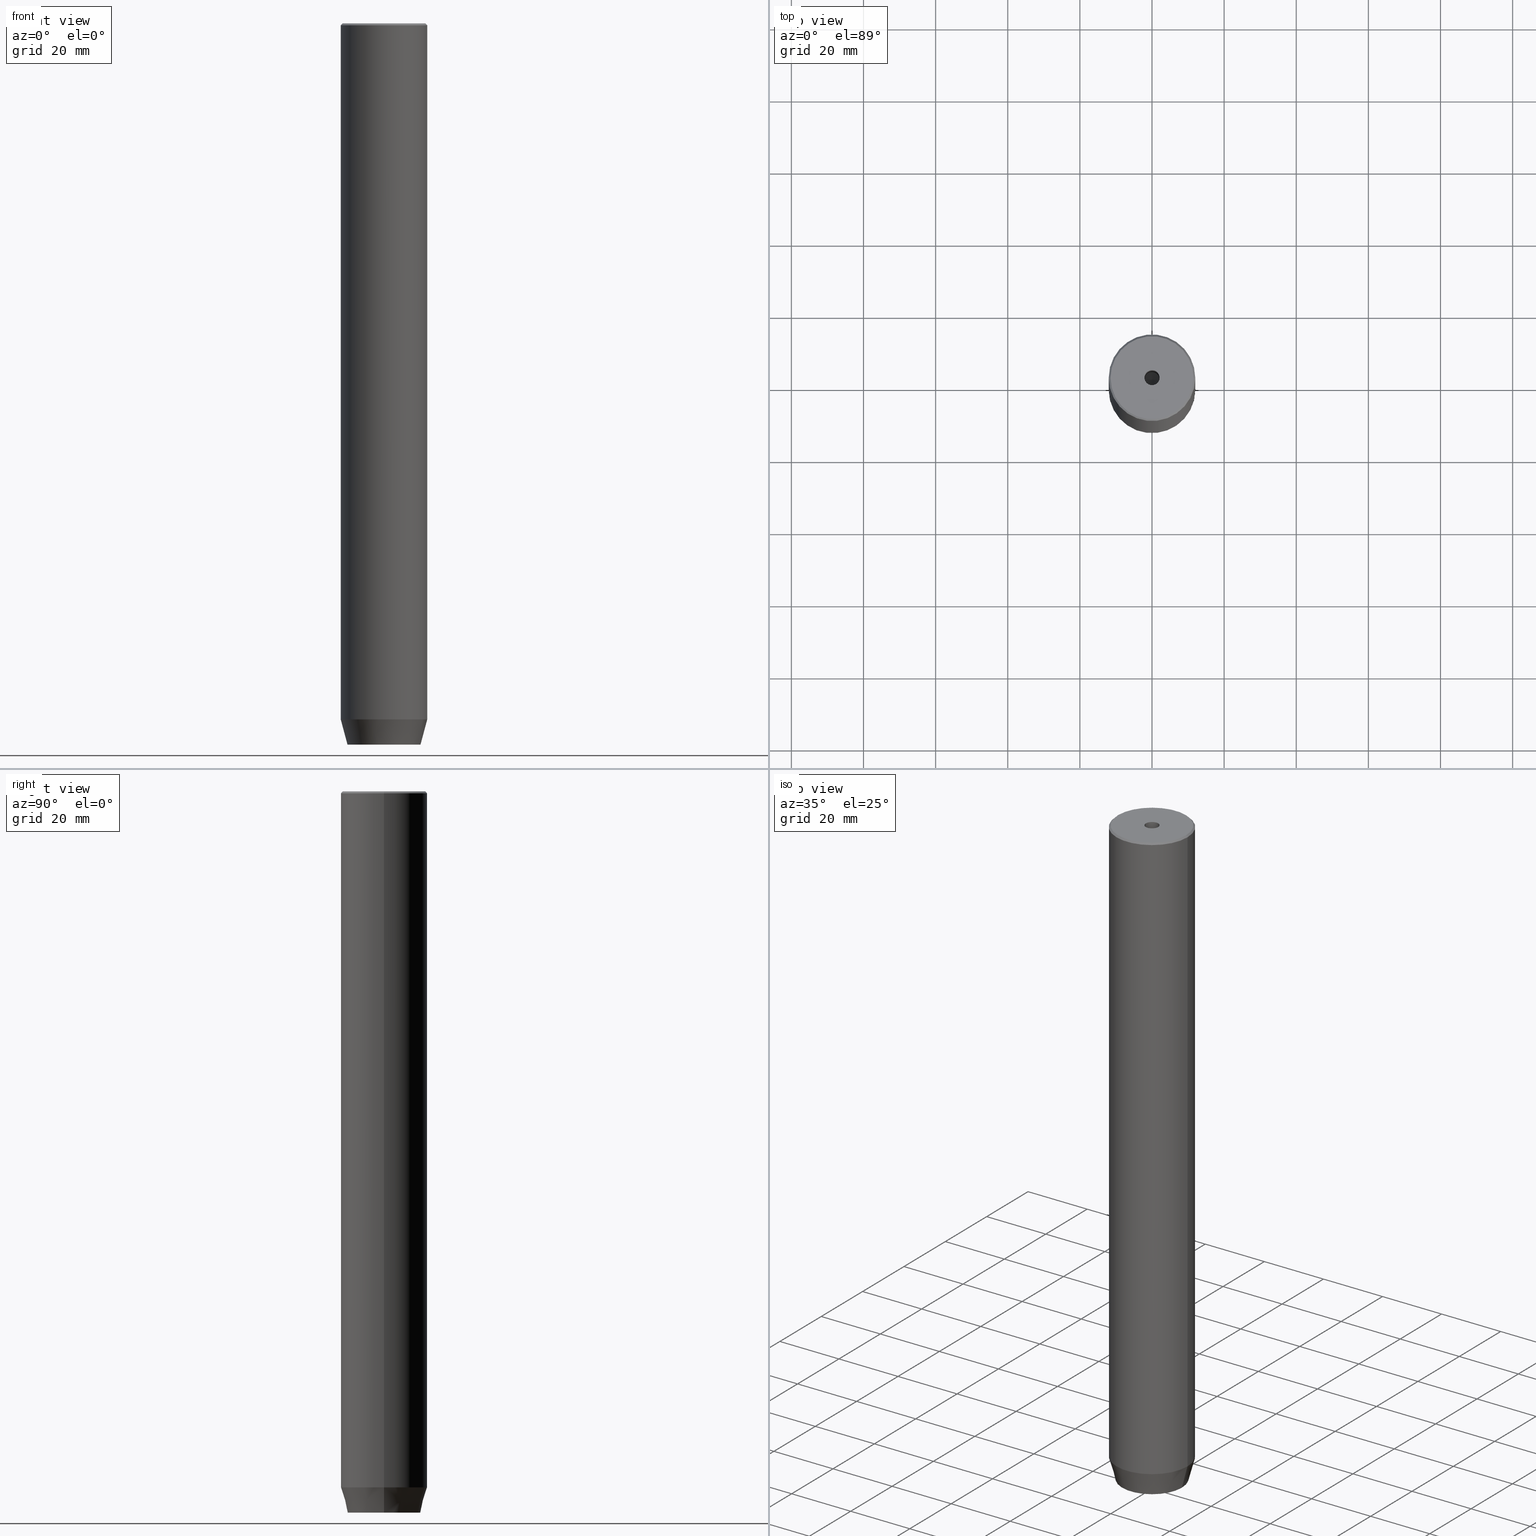
[diagram: canonical four-view strip — front | top / right | iso, engineering-drawing reading convention]
A machine part, canonical four-view strip (front | top / right | iso — engineering-drawing reading convention). The complete STEP part file that produces these views, byte-faithful:
ISO-10303-21;
HEADER;
FILE_DESCRIPTION (( 'STEP AP203' ),
    '1' );
FILE_NAME ('794c.STEP',
    '2024-01-02T17:14:36',
    ( '' ),
    ( '' ),
    'SwSTEP 2.0',
    'SolidWorks 2019',
    '' );
FILE_SCHEMA (( 'CONFIG_CONTROL_DESIGN' ));
ENDSEC;

DATA;
#1 = ORIENTED_EDGE ( 'NONE', *, *, #272, .F. ) ;
#2 = FACE_OUTER_BOUND ( 'NONE', #132, .T. ) ;
#3 = CARTESIAN_POINT ( 'NONE',  ( 2.000000000000000444, 3.464101615137754386, -200.0000000000000000 ) ) ;
#4 = VECTOR ( 'NONE', #447, 1000.000000000000000 ) ;
#5 = CC_DESIGN_SECURITY_CLASSIFICATION ( #185, ( #570 ) ) ;
#6 = ORIENTED_EDGE ( 'NONE', *, *, #237, .F. ) ;
#7 = ORIENTED_EDGE ( 'NONE', *, *, #585, .T. ) ;
#8 = ORIENTED_EDGE ( 'NONE', *, *, #409, .T. ) ;
#9 = PRODUCT_RELATED_PRODUCT_CATEGORY ( 'detail', '', ( #82 ) ) ;
#10 = DIRECTION ( 'NONE',  ( -0.000000000000000000, -0.000000000000000000, -1.000000000000000000 ) ) ;
#11 = AXIS2_PLACEMENT_3D ( 'NONE', #207, #461, #15 ) ;
#12 = CARTESIAN_POINT ( 'NONE',  ( 0.000000000000000000, 0.000000000000000000, -200.0000000000000000 ) ) ;
#13 = ADVANCED_FACE ( 'NONE', ( #481 ), #29, .T. ) ;
#14 = CARTESIAN_POINT ( 'NONE',  ( -4.000000000000000000, 0.000000000000000000, -197.2000000000000171 ) ) ;
#15 = DIRECTION ( 'NONE',  ( 1.000000000000000000, 0.000000000000000000, 0.000000000000000000 ) ) ;
#16 = ORIENTED_EDGE ( 'NONE', *, *, #46, .F. ) ;
#17 = LINE ( 'NONE', #73, #371 ) ;
#18 = EDGE_LOOP ( 'NONE', ( #438, #253, #415, #27 ) ) ;
#19 = CARTESIAN_POINT ( 'NONE',  ( -2.099999999999996980, 2.571758278209438013E-16, 0.000000000000000000 ) ) ;
#20 = VECTOR ( 'NONE', #191, 1000.000000000000000 ) ;
#21 = SHAPE_DEFINITION_REPRESENTATION ( #76, #225 ) ;
#22 = PLANE ( 'NONE',  #449 ) ;
#23 = DATE_AND_TIME ( #126, #252 ) ;
#24 = EDGE_CURVE ( 'NONE', #86, #212, #187, .T. ) ;
#25 = CARTESIAN_POINT ( 'NONE',  ( 0.000000000000000000, 0.000000000000000000, -0.5000000000000334177 ) ) ;
#26 = PERSON_AND_ORGANIZATION ( #375, #281 ) ;
#27 = ORIENTED_EDGE ( 'NONE', *, *, #40, .T. ) ;
#28 = EDGE_LOOP ( 'NONE', ( #511, #121 ) ) ;
#29 = CONICAL_SURFACE ( 'NONE', #513, 11.49999999999998046, 0.7853981633974344012 ) ;
#30 = APPROVAL_DATE_TIME ( #574, #56 ) ;
#31 = AXIS2_PLACEMENT_3D ( 'NONE', #584, #196, #189 ) ;
#32 = APPROVAL_PERSON_ORGANIZATION ( #342, #56, #340 ) ;
#33 = ADVANCED_FACE ( 'NONE', ( #397 ), #480, .T. ) ;
#34 = ORIENTED_EDGE ( 'NONE', *, *, #169, .T. ) ;
#35 = ORIENTED_EDGE ( 'NONE', *, *, #557, .T. ) ;
#36 = CARTESIAN_POINT ( 'NONE',  ( -2.099999999999998757, 2.571758278209440478E-16, -1.990051048614449116E-16 ) ) ;
#37 = DIRECTION ( 'NONE',  ( -0.000000000000000000, -0.000000000000000000, 1.000000000000000000 ) ) ;
#38 = ORIENTED_EDGE ( 'NONE', *, *, #24, .T. ) ;
#39 = ORIENTED_EDGE ( 'NONE', *, *, #291, .F. ) ;
#40 = EDGE_CURVE ( 'NONE', #155, #386, #177, .T. ) ;
#41 = DIRECTION ( 'NONE',  ( 1.000000000000000000, 0.000000000000000000, 0.000000000000000000 ) ) ;
#42 = FACE_OUTER_BOUND ( 'NONE', #28, .T. ) ;
#43 = VECTOR ( 'NONE', #361, 1000.000000000000000 ) ;
#44 = ORIENTED_EDGE ( 'NONE', *, *, #237, .T. ) ;
#45 = CARTESIAN_POINT ( 'NONE',  ( 11.49999999999998046, 1.438959988998138780E-15, 0.000000000000000000 ) ) ;
#46 = EDGE_CURVE ( 'NONE', #167, #441, #77, .T. ) ;
#47 = DIRECTION ( 'NONE',  ( 1.000000000000000000, 0.000000000000000000, 0.000000000000000000 ) ) ;
#48 = PLANE ( 'NONE',  #299 ) ;
#49 = DIRECTION ( 'NONE',  ( -0.8660254037844384856, 0.5000000000000002220, 0.000000000000000000 ) ) ;
#50 = ORIENTED_EDGE ( 'NONE', *, *, #123, .F. ) ;
#51 = DIRECTION ( 'NONE',  ( -0.000000000000000000, -0.000000000000000000, 1.000000000000000000 ) ) ;
#52 = VERTEX_POINT ( 'NONE', #127 ) ;
#53 = AXIS2_PLACEMENT_3D ( 'NONE', #12, #62, #255 ) ;
#54 =( LENGTH_UNIT ( ) NAMED_UNIT ( * ) SI_UNIT ( .MILLI., .METRE. ) );
#55 = ORIENTED_EDGE ( 'NONE', *, *, #334, .F. ) ;
#56 = APPROVAL ( #429, 'NEUR�EN�' ) ;
#57 = VERTEX_POINT ( 'NONE', #442 ) ;
#58 = EDGE_CURVE ( 'NONE', #52, #149, #160, .T. ) ;
#59 = AXIS2_PLACEMENT_3D ( 'NONE', #567, #383, #164 ) ;
#60 = ORIENTED_EDGE ( 'NONE', *, *, #123, .T. ) ;
#61 = LOCAL_TIME ( 18, 14, 36.00000000000000000, #518 ) ;
#62 = DIRECTION ( 'NONE',  ( -0.000000000000000000, -0.000000000000000000, 1.000000000000000000 ) ) ;
#63 = CC_DESIGN_DATE_AND_TIME_ASSIGNMENT ( #479, #439, ( #193 ) ) ;
#64 = EDGE_CURVE ( 'NONE', #231, #373, #311, .T. ) ;
#65 = ORIENTED_EDGE ( 'NONE', *, *, #557, .F. ) ;
#66 = DIRECTION ( 'NONE',  ( 0.000000000000000000, 0.000000000000000000, -1.000000000000000000 ) ) ;
#67 = CARTESIAN_POINT ( 'NONE',  ( -2.099999999999994760, 2.571758278209435054E-16, -30.00000000000000000 ) ) ;
#68 = PERSON_AND_ORGANIZATION ( #375, #281 ) ;
#69 = EDGE_CURVE ( 'NONE', #86, #122, #211, .T. ) ;
#70 = CARTESIAN_POINT ( 'NONE',  ( 0.000000000000000000, 0.000000000000000000, 0.000000000000000000 ) ) ;
#71 = CIRCLE ( 'NONE', #330, 12.00000000000000000 ) ;
#72 = ORIENTED_EDGE ( 'NONE', *, *, #219, .T. ) ;
#73 = CARTESIAN_POINT ( 'NONE',  ( -4.000000000000000000, 2.309401076758503368, -197.2000000000000171 ) ) ;
#74 = SECURITY_CLASSIFICATION_LEVEL ( 'unclassified' ) ;
#75 = ORIENTED_EDGE ( 'NONE', *, *, #566, .T. ) ;
#76 = PRODUCT_DEFINITION_SHAPE ( 'NONE', 'NONE',  #193 ) ;
#77 = LINE ( 'NONE', #175, #410 ) ;
#78 = APPROVAL_ROLE ( '' ) ;
#79 = ORIENTED_EDGE ( 'NONE', *, *, #280, .F. ) ;
#80 = VECTOR ( 'NONE', #181, 1000.000000000000000 ) ;
#81 = EDGE_CURVE ( 'NONE', #571, #509, #71, .T. ) ;
#82 = PRODUCT ( '794c', '794c', '', ( #467 ) ) ;
#83 = CARTESIAN_POINT ( 'NONE',  ( 0.000000000000000000, 0.000000000000000000, 0.000000000000000000 ) ) ;
#84 = CARTESIAN_POINT ( 'NONE',  ( -2.099999999999994760, 2.571758278209435054E-16, -30.00000000000000000 ) ) ;
#85 = CARTESIAN_POINT ( 'NONE',  ( -11.49999999999998046, 0.000000000000000000, 0.000000000000000000 ) ) ;
#86 = VERTEX_POINT ( 'NONE', #572 ) ;
#87 = DIRECTION ( 'NONE',  ( -0.8660254037844384856, -0.5000000000000002220, 0.000000000000000000 ) ) ;
#88 = CARTESIAN_POINT ( 'NONE',  ( -4.000000000000000000, 0.000000000000000000, -200.0000000000000000 ) ) ;
#89 = CARTESIAN_POINT ( 'NONE',  ( -2.000000000000000888, -3.464101615137754386, -200.0000000000000000 ) ) ;
#90 = ORIENTED_EDGE ( 'NONE', *, *, #356, .T. ) ;
#91 = CARTESIAN_POINT ( 'NONE',  ( 2.099999999999994760, 0.000000000000000000, -30.00000000000000000 ) ) ;
#92 = VECTOR ( 'NONE', #315, 1000.000000000000000 ) ;
#93 = CARTESIAN_POINT ( 'NONE',  ( 0.000000000000000000, 10.12435565298213547, -200.0000000000000000 ) ) ;
#94 = AXIS2_PLACEMENT_3D ( 'NONE', #301, #420, #329 ) ;
#95 = LINE ( 'NONE', #91, #203 ) ;
#96 = CARTESIAN_POINT ( 'NONE',  ( 0.000000000000000000, 0.000000000000000000, -30.00000000000000000 ) ) ;
#97 = DIRECTION ( 'NONE',  ( 1.000000000000000000, 0.000000000000000000, 0.000000000000000000 ) ) ;
#98 = ADVANCED_FACE ( 'NONE', ( #385 ), #22, .F. ) ;
#99 = ORIENTED_EDGE ( 'NONE', *, *, #334, .T. ) ;
#100 = APPLICATION_CONTEXT ( 'configuration controlled 3d designs of mechanical parts and assemblies' ) ;
#101 = DIRECTION ( 'NONE',  ( 0.000000000000000000, -1.000000000000000000, 0.000000000000000000 ) ) ;
#102 = ORIENTED_EDGE ( 'NONE', *, *, #585, .F. ) ;
#103 = CC_DESIGN_PERSON_AND_ORGANIZATION_ASSIGNMENT ( #26, #268, ( #185 ) ) ;
#104 = CIRCLE ( 'NONE', #476, 12.00000000000000000 ) ;
#105 = ORIENTED_EDGE ( 'NONE', *, *, #507, .T. ) ;
#106 = ORIENTED_EDGE ( 'NONE', *, *, #64, .T. ) ;
#107 = CARTESIAN_POINT ( 'NONE',  ( 4.000000000000000000, 0.000000000000000000, -197.2000000000000171 ) ) ;
#108 = FACE_OUTER_BOUND ( 'NONE', #264, .T. ) ;
#109 = ORIENTED_EDGE ( 'NONE', *, *, #272, .T. ) ;
#110 = APPROVAL_PERSON_ORGANIZATION ( #333, #562, #464 ) ;
#111 = ORIENTED_EDGE ( 'NONE', *, *, #280, .T. ) ;
#112 = DIRECTION ( 'NONE',  ( -0.000000000000000000, -0.000000000000000000, 1.000000000000000000 ) ) ;
#113 = LINE ( 'NONE', #469, #271 ) ;
#114 = ORIENTED_EDGE ( 'NONE', *, *, #520, .F. ) ;
#115 = CARTESIAN_POINT ( 'NONE',  ( 0.000000000000000000, 0.000000000000000000, -30.00000000000000000 ) ) ;
#116 = COORDINATED_UNIVERSAL_TIME_OFFSET ( 1, 0, .AHEAD. ) ;
#117 = DIRECTION ( 'NONE',  ( 0.5000000000000003331, -0.8660254037844385966, 0.000000000000000000 ) ) ;
#118 = APPROVAL_DATE_TIME ( #218, #562 ) ;
#119 = DIRECTION ( 'NONE',  ( -0.000000000000000000, -0.000000000000000000, 1.000000000000000000 ) ) ;
#120 = AXIS2_PLACEMENT_3D ( 'NONE', #543, #552, #581 ) ;
#121 = ORIENTED_EDGE ( 'NONE', *, *, #135, .F. ) ;
#122 = VERTEX_POINT ( 'NONE', #67 ) ;
#123 = EDGE_CURVE ( 'NONE', #509, #571, #104, .T. ) ;
#124 = PERSON_AND_ORGANIZATION ( #375, #281 ) ;
#125 = ORIENTED_EDGE ( 'NONE', *, *, #58, .F. ) ;
#126 = CALENDAR_DATE ( 2024, 2, 1 ) ;
#127 = CARTESIAN_POINT ( 'NONE',  ( 12.00000000000000000, 0.000000000000000000, -193.0000000000000000 ) ) ;
#128 = VECTOR ( 'NONE', #49, 1000.000000000000114 ) ;
#129 = DIRECTION ( 'NONE',  ( 0.000000000000000000, 0.000000000000000000, -1.000000000000000000 ) ) ;
#130 = APPROVAL_PERSON_ORGANIZATION ( #68, #501, #78 ) ;
#131 = LINE ( 'NONE', #318, #92 ) ;
#132 = EDGE_LOOP ( 'NONE', ( #146, #162, #8 ) ) ;
#133 = FACE_OUTER_BOUND ( 'NONE', #378, .T. ) ;
#134 = FACE_OUTER_BOUND ( 'NONE', #200, .T. ) ;
#135 = EDGE_CURVE ( 'NONE', #156, #416, #141, .T. ) ;
#136 = ORIENTED_EDGE ( 'NONE', *, *, #402, .F. ) ;
#137 = ORIENTED_EDGE ( 'NONE', *, *, #488, .T. ) ;
#138 = CARTESIAN_POINT ( 'NONE',  ( 4.336808689942017736E-16, -4.618802153517006737, -200.0000000000000000 ) ) ;
#139 = DIRECTION ( 'NONE',  ( -0.000000000000000000, -0.000000000000000000, 1.000000000000000000 ) ) ;
#140 = DIRECTION ( 'NONE',  ( -0.8660254037844384856, -0.5000000000000002220, 0.000000000000000000 ) ) ;
#141 = CIRCLE ( 'NONE', #59, 10.12435565298213547 ) ;
#142 = DIRECTION ( 'NONE',  ( -0.8660254037844385966, 0.5000000000000001110, 0.000000000000000000 ) ) ;
#143 = VECTOR ( 'NONE', #157, 999.9999999999998863 ) ;
#144 = VERTEX_POINT ( 'NONE', #304 ) ;
#145 = CC_DESIGN_PERSON_AND_ORGANIZATION_ASSIGNMENT ( #526, #384, ( #193 ) ) ;
#146 = ORIENTED_EDGE ( 'NONE', *, *, #391, .F. ) ;
#147 = LINE ( 'NONE', #317, #4 ) ;
#148 = FACE_BOUND ( 'NONE', #267, .T. ) ;
#149 = VERTEX_POINT ( 'NONE', #425 ) ;
#150 = DIRECTION ( 'NONE',  ( -0.000000000000000000, -0.000000000000000000, 1.000000000000000000 ) ) ;
#151 = EDGE_LOOP ( 'NONE', ( #463, #414, #38, #35 ) ) ;
#152 = APPLICATION_PROTOCOL_DEFINITION ( 'international standard', 'config_control_design', 1994, #100 ) ;
#153 = ADVANCED_FACE ( 'NONE', ( #433 ), #344, .T. ) ;
#154 = VECTOR ( 'NONE', #564, 1000.000000000000000 ) ;
#155 = VERTEX_POINT ( 'NONE', #339 ) ;
#156 = VERTEX_POINT ( 'NONE', #265 ) ;
#157 = DIRECTION ( 'NONE',  ( -0.7071067811865376918, 0.000000000000000000, -0.7071067811865574537 ) ) ;
#158 = EDGE_LOOP ( 'NONE', ( #273, #90, #60, #270 ) ) ;
#159 = CARTESIAN_POINT ( 'NONE',  ( 12.00000000000000000, 0.000000000000000000, 0.000000000000000000 ) ) ;
#160 = CIRCLE ( 'NONE', #241, 12.00000000000000000 ) ;
#161 = AXIS2_PLACEMENT_3D ( 'NONE', #215, #306, #478 ) ;
#162 = ORIENTED_EDGE ( 'NONE', *, *, #402, .T. ) ;
#163 = AXIS2_PLACEMENT_3D ( 'NONE', #250, #367, #205 ) ;
#164 = DIRECTION ( 'NONE',  ( 1.000000000000000000, 0.000000000000000000, 0.000000000000000000 ) ) ;
#165 = CARTESIAN_POINT ( 'NONE',  ( 2.000000000000000888, -3.464101615137754386, -197.2000000000000171 ) ) ;
#166 = ADVANCED_FACE ( 'NONE', ( #573 ), #343, .F. ) ;
#167 = VERTEX_POINT ( 'NONE', #168 ) ;
#168 = CARTESIAN_POINT ( 'NONE',  ( 4.000000000000000000, -2.309401076758502480, -197.2000000000000171 ) ) ;
#169 = EDGE_CURVE ( 'NONE', #167, #500, #259, .T. ) ;
#170 = VECTOR ( 'NONE', #551, 999.9999999999998863 ) ;
#171 = EDGE_LOOP ( 'NONE', ( #223, #6, #1, #489 ) ) ;
#172 = CONICAL_SURFACE ( 'NONE', #94, 12.00000000000000000, 0.2617993877991500740 ) ;
#173 = PERSON_AND_ORGANIZATION_ROLE ( 'creator' ) ;
#174 = EDGE_CURVE ( 'NONE', #122, #465, #521, .T. ) ;
#175 = CARTESIAN_POINT ( 'NONE',  ( 2.000000000000000888, -3.464101615137754386, -197.2000000000000171 ) ) ;
#176 = CALENDAR_DATE ( 2024, 2, 1 ) ;
#177 = LINE ( 'NONE', #529, #80 ) ;
#178 = LINE ( 'NONE', #413, #170 ) ;
#179 = DIRECTION ( 'NONE',  ( 0.2588190451025213501, 0.000000000000000000, 0.9659258262890680902 ) ) ;
#180 = ORIENTED_EDGE ( 'NONE', *, *, #550, .F. ) ;
#181 = DIRECTION ( 'NONE',  ( -0.000000000000000000, -0.000000000000000000, -1.000000000000000000 ) ) ;
#182 = CONICAL_SURFACE ( 'NONE', #411, 2.099999999999994760, 1.029744258676652535 ) ;
#183 = ADVANCED_FACE ( 'NONE', ( #517 ), #302, .F. ) ;
#184 = CARTESIAN_POINT ( 'NONE',  ( -2.000000000000000888, -3.464101615137754386, -197.2000000000000171 ) ) ;
#185 = SECURITY_CLASSIFICATION ( '', '', #74 ) ;
#186 = CARTESIAN_POINT ( 'NONE',  ( -4.000000000000000000, -2.309401076758503368, -197.2000000000000171 ) ) ;
#187 = LINE ( 'NONE', #226, #194 ) ;
#188 = DIRECTION ( 'NONE',  ( -0.000000000000000000, -0.000000000000000000, 1.000000000000000000 ) ) ;
#189 = DIRECTION ( 'NONE',  ( 0.000000000000000000, 0.000000000000000000, 1.000000000000000000 ) ) ;
#190 = DESIGN_CONTEXT ( 'detailed design', #544, 'design' ) ;
#191 = DIRECTION ( 'NONE',  ( -0.000000000000000000, -0.000000000000000000, -1.000000000000000000 ) ) ;
#192 = LINE ( 'NONE', #444, #288 ) ;
#193 = PRODUCT_DEFINITION ( 'NEZN�M�', '', #570, #190 ) ;
#194 = VECTOR ( 'NONE', #536, 1000.000000000000000 ) ;
#195 = CARTESIAN_POINT ( 'NONE',  ( 4.000000000000000000, -2.309401076758502480, -200.0000000000000000 ) ) ;
#196 = DIRECTION ( 'NONE',  ( -1.000000000000000000, 0.000000000000000000, 0.000000000000000000 ) ) ;
#197 = LINE ( 'NONE', #107, #290 ) ;
#198 = VERTEX_POINT ( 'NONE', #435 ) ;
#199 = DIRECTION ( 'NONE',  ( 0.000000000000000000, 0.000000000000000000, 1.000000000000000000 ) ) ;
#200 = EDGE_LOOP ( 'NONE', ( #137, #504, #221, #44 ) ) ;
#201 = VERTEX_POINT ( 'NONE', #468 ) ;
#202 = DIRECTION ( 'NONE',  ( 1.000000000000000000, 0.000000000000000000, 0.000000000000000000 ) ) ;
#203 = VECTOR ( 'NONE', #286, 1000.000000000000000 ) ;
#204 = VECTOR ( 'NONE', #179, 1000.000000000000000 ) ;
#205 = DIRECTION ( 'NONE',  ( 1.000000000000000000, 0.000000000000000000, 0.000000000000000000 ) ) ;
#206 = DIRECTION ( 'NONE',  ( 0.000000000000000000, 1.000000000000000000, 0.000000000000000000 ) ) ;
#207 = CARTESIAN_POINT ( 'NONE',  ( 0.000000000000000000, 0.000000000000000000, -1.990051048614449116E-16 ) ) ;
#208 = ORIENTED_EDGE ( 'NONE', *, *, #332, .T. ) ;
#209 = EDGE_CURVE ( 'NONE', #201, #57, #17, .T. ) ;
#210 = CARTESIAN_POINT ( 'NONE',  ( 4.000000000000000000, -2.309401076758502480, -197.2000000000000171 ) ) ;
#211 = CIRCLE ( 'NONE', #390, 2.099999999999994760 ) ;
#212 = VERTEX_POINT ( 'NONE', #514 ) ;
#213 = CC_DESIGN_APPROVAL ( #56, ( #185 ) ) ;
#214 = CC_DESIGN_PERSON_AND_ORGANIZATION_ASSIGNMENT ( #124, #303, ( #570 ) ) ;
#215 = CARTESIAN_POINT ( 'NONE',  ( 4.000000000000000000, 0.000000000000000000, -197.2000000000000171 ) ) ;
#216 = ORIENTED_EDGE ( 'NONE', *, *, #64, .F. ) ;
#217 = DIRECTION ( 'NONE',  ( -1.000000000000000000, 0.000000000000000000, 0.000000000000000000 ) ) ;
#218 = DATE_AND_TIME ( #394, #61 ) ;
#219 = EDGE_CURVE ( 'NONE', #365, #201, #423, .T. ) ;
#220 = DIRECTION ( 'NONE',  ( -0.5000000000000000000, 0.8660254037844387076, 0.000000000000000000 ) ) ;
#221 = ORIENTED_EDGE ( 'NONE', *, *, #219, .F. ) ;
#222 = VECTOR ( 'NONE', #119, 1000.000000000000000 ) ;
#223 = ORIENTED_EDGE ( 'NONE', *, *, #256, .T. ) ;
#224 = VECTOR ( 'NONE', #249, 999.9999999999998863 ) ;
#225 = ADVANCED_BREP_SHAPE_REPRESENTATION ( '794c', ( #474, #534 ), #497 ) ;
#226 = CARTESIAN_POINT ( 'NONE',  ( 2.099999999999996980, 0.000000000000000000, 0.000000000000000000 ) ) ;
#227 = CARTESIAN_POINT ( 'NONE',  ( 0.000000000000000000, 0.000000000000000000, 0.000000000000000000 ) ) ;
#228 = EDGE_CURVE ( 'NONE', #52, #571, #377, .T. ) ;
#229 = CYLINDRICAL_SURFACE ( 'NONE', #312, 12.00000000000000000 ) ;
#230 = FACE_OUTER_BOUND ( 'NONE', #171, .T. ) ;
#231 = VERTEX_POINT ( 'NONE', #85 ) ;
#232 = VECTOR ( 'NONE', #206, 1000.000000000000000 ) ;
#233 = LINE ( 'NONE', #88, #483 ) ;
#234 = DIRECTION ( 'NONE',  ( 0.000000000000000000, 0.000000000000000000, -1.000000000000000000 ) ) ;
#235 = CARTESIAN_POINT ( 'NONE',  ( 10.12435565298213547, 0.000000000000000000, -200.0000000000000000 ) ) ;
#236 = LINE ( 'NONE', #406, #204 ) ;
#237 = EDGE_CURVE ( 'NONE', #365, #198, #351, .T. ) ;
#238 = FACE_OUTER_BOUND ( 'NONE', #151, .T. ) ;
#239 = DIRECTION ( 'NONE',  ( 0.8660254037844387076, 0.5000000000000001110, 0.000000000000000000 ) ) ;
#240 = CC_DESIGN_PERSON_AND_ORGANIZATION_ASSIGNMENT ( #426, #173, ( #570 ) ) ;
#241 = AXIS2_PLACEMENT_3D ( 'NONE', #347, #313, #485 ) ;
#242 = LINE ( 'NONE', #405, #20 ) ;
#243 = CIRCLE ( 'NONE', #53, 10.12435565298213547 ) ;
#244 = ORIENTED_EDGE ( 'NONE', *, *, #310, .T. ) ;
#245 = CC_DESIGN_APPROVAL ( #501, ( #570 ) ) ;
#246 = ORIENTED_EDGE ( 'NONE', *, *, #409, .F. ) ;
#247 = EDGE_LOOP ( 'NONE', ( #102, #216, #75, #503 ) ) ;
#248 = ADVANCED_FACE ( 'NONE', ( #134 ), #399, .F. ) ;
#249 = DIRECTION ( 'NONE',  ( 0.7071067811865376918, 8.659560562354813296E-17, -0.7071067811865574537 ) ) ;
#250 = CARTESIAN_POINT ( 'NONE',  ( 0.000000000000000000, 0.000000000000000000, -193.0000000000000000 ) ) ;
#251 = VECTOR ( 'NONE', #532, 1000.000000000000000 ) ;
#252 = LOCAL_TIME ( 18, 14, 36.00000000000000000, #116 ) ;
#253 = ORIENTED_EDGE ( 'NONE', *, *, #169, .F. ) ;
#254 = DIRECTION ( 'NONE',  ( -0.000000000000000000, -0.000000000000000000, -1.000000000000000000 ) ) ;
#255 = DIRECTION ( 'NONE',  ( 1.000000000000000000, 0.000000000000000000, 0.000000000000000000 ) ) ;
#256 = EDGE_CURVE ( 'NONE', #490, #198, #324, .T. ) ;
#257 = DIRECTION ( 'NONE',  ( -0.000000000000000000, -0.000000000000000000, 1.000000000000000000 ) ) ;
#258 =( NAMED_UNIT ( * ) PLANE_ANGLE_UNIT ( ) SI_UNIT ( $, .RADIAN. ) );
#259 = LINE ( 'NONE', #210, #154 ) ;
#260 = AXIS2_PLACEMENT_3D ( 'NONE', #561, #150, #202 ) ;
#261 = ORIENTED_EDGE ( 'NONE', *, *, #310, .F. ) ;
#262 = ADVANCED_FACE ( 'NONE', ( #454 ), #547, .F. ) ;
#263 = DIRECTION ( 'NONE',  ( 0.000000000000000000, 0.000000000000000000, -1.000000000000000000 ) ) ;
#264 = EDGE_LOOP ( 'NONE', ( #412, #349, #99, #39 ) ) ;
#265 = CARTESIAN_POINT ( 'NONE',  ( -10.12435565298213547, 1.354726066681111050E-15, -200.0000000000000000 ) ) ;
#266 = APPROVAL_DATE_TIME ( #23, #501 ) ;
#267 = EDGE_LOOP ( 'NONE', ( #434, #276, #387, #527, #180, #368 ) ) ;
#268 = PERSON_AND_ORGANIZATION_ROLE ( 'classification_officer' ) ;
#269 = VECTOR ( 'NONE', #112, 1000.000000000000000 ) ;
#270 = ORIENTED_EDGE ( 'NONE', *, *, #228, .F. ) ;
#271 = VECTOR ( 'NONE', #10, 1000.000000000000000 ) ;
#272 = EDGE_CURVE ( 'NONE', #441, #365, #587, .T. ) ;
#273 = ORIENTED_EDGE ( 'NONE', *, *, #58, .T. ) ;
#274 = CYLINDRICAL_SURFACE ( 'NONE', #568, 2.099999999999996980 ) ;
#275 = CARTESIAN_POINT ( 'NONE',  ( 2.000000000000000444, 3.464101615137754386, -197.2000000000000171 ) ) ;
#276 = ORIENTED_EDGE ( 'NONE', *, *, #488, .F. ) ;
#277 = DIRECTION ( 'NONE',  ( 0.8660254037844384856, -0.5000000000000002220, 0.000000000000000000 ) ) ;
#278 = CARTESIAN_POINT ( 'NONE',  ( -2.000000000000000000, 3.464101615137754830, -197.2000000000000171 ) ) ;
#279 = AXIS2_PLACEMENT_3D ( 'NONE', #320, #51, #97 ) ;
#280 = EDGE_CURVE ( 'NONE', #373, #231, #558, .T. ) ;
#281 = ORGANIZATION ( 'NEUR�EN�', 'NEUR�EN�', '' ) ;
#282 = FACE_OUTER_BOUND ( 'NONE', #556, .T. ) ;
#283 = DIRECTION ( 'NONE',  ( -1.000000000000000000, 0.000000000000000000, -0.000000000000000000 ) ) ;
#284 = FACE_OUTER_BOUND ( 'NONE', #295, .T. ) ;
#285 = CARTESIAN_POINT ( 'NONE',  ( -4.000000000000000000, -2.309401076758503368, -197.2000000000000171 ) ) ;
#286 = DIRECTION ( 'NONE',  ( 0.8571673007021113344, 0.000000000000000000, 0.5150380749100558209 ) ) ;
#287 = CARTESIAN_POINT ( 'NONE',  ( 12.00000000000000000, 0.000000000000000000, -0.5000000000000334177 ) ) ;
#288 = VECTOR ( 'NONE', #37, 1000.000000000000000 ) ;
#289 = EDGE_LOOP ( 'NONE', ( #136, #376, #353 ) ) ;
#290 = VECTOR ( 'NONE', #506, 1000.000000000000000 ) ;
#291 = EDGE_CURVE ( 'NONE', #149, #52, #322, .T. ) ;
#292 = ORIENTED_EDGE ( 'NONE', *, *, #174, .T. ) ;
#293 = PERSON_AND_ORGANIZATION ( #375, #281 ) ;
#294 = ORIENTED_EDGE ( 'NONE', *, *, #372, .T. ) ;
#295 = EDGE_LOOP ( 'NONE', ( #246, #292, #393, #346 ) ) ;
#296 = PERSON_AND_ORGANIZATION_ROLE ( 'design_owner' ) ;
#297 = DIRECTION ( 'NONE',  ( 1.000000000000000000, 0.000000000000000000, 0.000000000000000000 ) ) ;
#298 = EDGE_CURVE ( 'NONE', #201, #345, #364, .T. ) ;
#299 = AXIS2_PLACEMENT_3D ( 'NONE', #323, #350, #586 ) ;
#300 = DIRECTION ( 'NONE',  ( -0.8660254037844385966, -0.4999999999999999445, 0.000000000000000000 ) ) ;
#301 = CARTESIAN_POINT ( 'NONE',  ( 0.000000000000000000, 0.000000000000000000, -193.0000000000000000 ) ) ;
#302 = PLANE ( 'NONE',  #161 ) ;
#303 = PERSON_AND_ORGANIZATION_ROLE ( 'design_supplier' ) ;
#304 = CARTESIAN_POINT ( 'NONE',  ( 0.000000000000000000, 4.618802153517006737, -200.0000000000000000 ) ) ;
#305 = AXIS2_PLACEMENT_3D ( 'NONE', #404, #139, #47 ) ;
#306 = DIRECTION ( 'NONE',  ( 1.000000000000000000, 0.000000000000000000, -0.000000000000000000 ) ) ;
#307 = DIRECTION ( 'NONE',  ( 0.000000000000000000, 0.000000000000000000, -1.000000000000000000 ) ) ;
#308 = VERTEX_POINT ( 'NONE', #321 ) ;
#309 = DATE_TIME_ROLE ( 'classification_date' ) ;
#310 = EDGE_CURVE ( 'NONE', #345, #155, #131, .T. ) ;
#311 = CIRCLE ( 'NONE', #400, 11.49999999999998046 ) ;
#312 = AXIS2_PLACEMENT_3D ( 'NONE', #407, #580, #546 ) ;
#313 = DIRECTION ( 'NONE',  ( -0.000000000000000000, -0.000000000000000000, 1.000000000000000000 ) ) ;
#314 = DIRECTION ( 'NONE',  ( -0.000000000000000000, -0.000000000000000000, 1.000000000000000000 ) ) ;
#315 = DIRECTION ( 'NONE',  ( 0.8660254037844385966, -0.5000000000000001110, 0.000000000000000000 ) ) ;
#316 = DIRECTION ( 'NONE',  ( 1.000000000000000000, 0.000000000000000000, 0.000000000000000000 ) ) ;
#317 = CARTESIAN_POINT ( 'NONE',  ( -12.00000000000000000, 1.469576158976823947E-15, -193.0000000000000000 ) ) ;
#318 = CARTESIAN_POINT ( 'NONE',  ( 2.000000000000000444, 3.464101615137754386, -197.2000000000000171 ) ) ;
#319 = ADVANCED_FACE ( 'NONE', ( #492 ), #575, .F. ) ;
#320 = CARTESIAN_POINT ( 'NONE',  ( 0.000000000000000000, 0.000000000000000000, -30.00000000000000000 ) ) ;
#321 = CARTESIAN_POINT ( 'NONE',  ( -7.656934449090954900E-15, 0.000000000000000000, -31.26180729995787289 ) ) ;
#322 = CIRCLE ( 'NONE', #305, 12.00000000000000000 ) ;
#323 = CARTESIAN_POINT ( 'NONE',  ( 0.000000000000000000, 0.000000000000000000, 0.000000000000000000 ) ) ;
#324 = LINE ( 'NONE', #89, #548 ) ;
#325 = CARTESIAN_POINT ( 'NONE',  ( 0.000000000000000000, 0.000000000000000000, -30.00000000000000000 ) ) ;
#326 = CARTESIAN_POINT ( 'NONE',  ( 4.000000000000000000, 0.000000000000000000, -200.0000000000000000 ) ) ;
#327 = ADVANCED_FACE ( 'NONE', ( #148, #42 ), #355, .T. ) ;
#328 = ORIENTED_EDGE ( 'NONE', *, *, #356, .F. ) ;
#329 = DIRECTION ( 'NONE',  ( 1.000000000000000000, 0.000000000000000000, 0.000000000000000000 ) ) ;
#330 = AXIS2_PLACEMENT_3D ( 'NONE', #25, #66, #379 ) ;
#331 = ORIENTED_EDGE ( 'NONE', *, *, #209, .T. ) ;
#332 = EDGE_CURVE ( 'NONE', #144, #386, #452, .T. ) ;
#333 = PERSON_AND_ORGANIZATION ( #375, #281 ) ;
#334 = EDGE_CURVE ( 'NONE', #416, #52, #236, .T. ) ;
#335 = LINE ( 'NONE', #424, #224 ) ;
#336 = CARTESIAN_POINT ( 'NONE',  ( 0.000000000000000000, 0.000000000000000000, -0.5000000000000334177 ) ) ;
#337 = AXIS2_PLACEMENT_3D ( 'NONE', #83, #395, #576 ) ;
#338 = CC_DESIGN_APPROVAL ( #562, ( #193 ) ) ;
#339 = CARTESIAN_POINT ( 'NONE',  ( 4.000000000000000000, 2.309401076758503368, -197.2000000000000171 ) ) ;
#340 = APPROVAL_ROLE ( '' ) ;
#341 = DIRECTION ( 'NONE',  ( 1.000000000000000000, 0.000000000000000000, 0.000000000000000000 ) ) ;
#342 = PERSON_AND_ORGANIZATION ( #375, #281 ) ;
#343 = PLANE ( 'NONE',  #430 ) ;
#344 = CONICAL_SURFACE ( 'NONE', #515, 11.49999999999998046, 0.7853981633974344012 ) ;
#345 = VERTEX_POINT ( 'NONE', #487 ) ;
#346 = ORIENTED_EDGE ( 'NONE', *, *, #24, .F. ) ;
#347 = CARTESIAN_POINT ( 'NONE',  ( 0.000000000000000000, 0.000000000000000000, -193.0000000000000000 ) ) ;
#348 = COORDINATED_UNIVERSAL_TIME_OFFSET ( 1, 0, .AHEAD. ) ;
#349 = ORIENTED_EDGE ( 'NONE', *, *, #135, .T. ) ;
#350 = DIRECTION ( 'NONE',  ( 0.000000000000000000, -0.000000000000000000, 1.000000000000000000 ) ) ;
#351 = LINE ( 'NONE', #285, #251 ) ;
#352 = AXIS2_PLACEMENT_3D ( 'NONE', #93, #234, #283 ) ;
#353 = ORIENTED_EDGE ( 'NONE', *, *, #69, .T. ) ;
#354 = DIRECTION ( 'NONE',  ( -0.5000000000000003331, -0.8660254037844385966, 0.000000000000000000 ) ) ;
#355 = PLANE ( 'NONE',  #352 ) ;
#356 = EDGE_CURVE ( 'NONE', #149, #509, #192, .T. ) ;
#357 = ORIENTED_EDGE ( 'NONE', *, *, #418, .T. ) ;
#358 = CARTESIAN_POINT ( 'NONE',  ( 4.336808689942017736E-16, -4.618802153517006737, -197.2000000000000171 ) ) ;
#359 = DIRECTION ( 'NONE',  ( 0.5000000000000001110, 0.8660254037844385966, -0.000000000000000000 ) ) ;
#360 = CARTESIAN_POINT ( 'NONE',  ( 0.000000000000000000, 0.000000000000000000, 0.000000000000000000 ) ) ;
#361 = DIRECTION ( 'NONE',  ( 0.8660254037844385966, -0.5000000000000001110, 0.000000000000000000 ) ) ;
#362 = CIRCLE ( 'NONE', #11, 2.099999999999998757 ) ;
#363 = LINE ( 'NONE', #84, #533 ) ;
#364 = LINE ( 'NONE', #278, #381 ) ;
#365 = VERTEX_POINT ( 'NONE', #186 ) ;
#366 = ADVANCED_FACE ( 'NONE', ( #230 ), #538, .F. ) ;
#367 = DIRECTION ( 'NONE',  ( -0.000000000000000000, -0.000000000000000000, 1.000000000000000000 ) ) ;
#368 = ORIENTED_EDGE ( 'NONE', *, *, #332, .F. ) ;
#369 = EDGE_LOOP ( 'NONE', ( #294, #535, #16, #34 ) ) ;
#370 = CARTESIAN_POINT ( 'NONE',  ( -11.49999999999998046, 0.000000000000000000, 0.000000000000000000 ) ) ;
#371 = VECTOR ( 'NONE', #254, 1000.000000000000000 ) ;
#372 = EDGE_CURVE ( 'NONE', #500, #490, #498, .T. ) ;
#373 = VERTEX_POINT ( 'NONE', #45 ) ;
#374 = LINE ( 'NONE', #370, #143 ) ;
#375 = PERSON ( 'NEUR�EN�', 'NEUR�EN�', 'NEUR�EN�', ('NEUR�EN�'), ('NEUR�EN�'), ('NEUR�EN�') ) ;
#376 = ORIENTED_EDGE ( 'NONE', *, *, #391, .T. ) ;
#377 = LINE ( 'NONE', #159, #269 ) ;
#378 = EDGE_LOOP ( 'NONE', ( #106, #111 ) ) ;
#379 = DIRECTION ( 'NONE',  ( 1.000000000000000000, 0.000000000000000000, 0.000000000000000000 ) ) ;
#380 = COORDINATED_UNIVERSAL_TIME_OFFSET ( 1, 0, .AHEAD. ) ;
#381 = VECTOR ( 'NONE', #239, 999.9999999999998863 ) ;
#382 = LOCAL_TIME ( 18, 14, 36.00000000000000000, #380 ) ;
#383 = DIRECTION ( 'NONE',  ( -0.000000000000000000, -0.000000000000000000, 1.000000000000000000 ) ) ;
#384 = PERSON_AND_ORGANIZATION_ROLE ( 'creator' ) ;
#385 = FACE_OUTER_BOUND ( 'NONE', #369, .T. ) ;
#386 = VERTEX_POINT ( 'NONE', #494 ) ;
#387 = ORIENTED_EDGE ( 'NONE', *, *, #256, .F. ) ;
#388 = DATE_AND_TIME ( #569, #460 ) ;
#389 = CLOSED_SHELL ( 'NONE', ( #446, #473, #153, #578, #33, #327, #427, #470, #524, #13, #166, #248, #366, #98, #183, #262, #432, #319, #455 ) ) ;
#390 = AXIS2_PLACEMENT_3D ( 'NONE', #115, #257, #519 ) ;
#391 = EDGE_CURVE ( 'NONE', #308, #86, #95, .T. ) ;
#392 = LOCAL_TIME ( 18, 14, 36.00000000000000000, #436 ) ;
#393 = ORIENTED_EDGE ( 'NONE', *, *, #520, .T. ) ;
#394 = CALENDAR_DATE ( 2024, 2, 1 ) ;
#395 = DIRECTION ( 'NONE',  ( -0.000000000000000000, -0.000000000000000000, 1.000000000000000000 ) ) ;
#396 = EDGE_LOOP ( 'NONE', ( #79, #7, #50, #541 ) ) ;
#397 = FACE_OUTER_BOUND ( 'NONE', #158, .T. ) ;
#398 = DIRECTION ( 'NONE',  ( -0.8571673007021113344, 1.049727191138617463E-16, 0.5150380749100558209 ) ) ;
#399 = PLANE ( 'NONE',  #31 ) ;
#400 = AXIS2_PLACEMENT_3D ( 'NONE', #227, #579, #316 ) ;
#401 = DIRECTION ( 'NONE',  ( -1.000000000000000000, 0.000000000000000000, 0.000000000000000000 ) ) ;
#402 = EDGE_CURVE ( 'NONE', #308, #122, #363, .T. ) ;
#403 = PLANE ( 'NONE',  #466 ) ;
#404 = CARTESIAN_POINT ( 'NONE',  ( 0.000000000000000000, 0.000000000000000000, -193.0000000000000000 ) ) ;
#405 = CARTESIAN_POINT ( 'NONE',  ( 4.336808689942017736E-16, -4.618802153517006737, -197.2000000000000171 ) ) ;
#406 = CARTESIAN_POINT ( 'NONE',  ( 12.00000000000000000, 0.000000000000000000, -193.0000000000000000 ) ) ;
#407 = CARTESIAN_POINT ( 'NONE',  ( 0.000000000000000000, 0.000000000000000000, 0.000000000000000000 ) ) ;
#408 = DIRECTION ( 'NONE',  ( -0.000000000000000000, -0.000000000000000000, 1.000000000000000000 ) ) ;
#409 = EDGE_CURVE ( 'NONE', #122, #86, #522, .T. ) ;
#410 = VECTOR ( 'NONE', #87, 1000.000000000000114 ) ;
#411 = AXIS2_PLACEMENT_3D ( 'NONE', #325, #188, #41 ) ;
#412 = ORIENTED_EDGE ( 'NONE', *, *, #458, .F. ) ;
#413 = CARTESIAN_POINT ( 'NONE',  ( -2.000000000000000000, 3.464101615137754830, -200.0000000000000000 ) ) ;
#414 = ORIENTED_EDGE ( 'NONE', *, *, #69, .F. ) ;
#415 = ORIENTED_EDGE ( 'NONE', *, *, #545, .F. ) ;
#416 = VERTEX_POINT ( 'NONE', #235 ) ;
#417 = CARTESIAN_POINT ( 'NONE',  ( 0.000000000000000000, 0.000000000000000000, 0.000000000000000000 ) ) ;
#418 = EDGE_CURVE ( 'NONE', #57, #144, #178, .T. ) ;
#419 = AXIS2_PLACEMENT_3D ( 'NONE', #96, #408, #448 ) ;
#420 = DIRECTION ( 'NONE',  ( -0.000000000000000000, -0.000000000000000000, 1.000000000000000000 ) ) ;
#421 = EDGE_CURVE ( 'NONE', #441, #490, #242, .T. ) ;
#422 = ORIENTED_EDGE ( 'NONE', *, *, #298, .T. ) ;
#423 = LINE ( 'NONE', #14, #232 ) ;
#424 = CARTESIAN_POINT ( 'NONE',  ( 11.49999999999998046, 1.408343819019453809E-15, 0.000000000000000000 ) ) ;
#425 = CARTESIAN_POINT ( 'NONE',  ( -12.00000000000000000, 1.469576158976823947E-15, -193.0000000000000000 ) ) ;
#426 = PERSON_AND_ORGANIZATION ( #375, #281 ) ;
#427 = ADVANCED_FACE ( 'NONE', ( #537, #133 ), #48, .T. ) ;
#428 = CARTESIAN_POINT ( 'NONE',  ( -2.000000000000000000, 3.464101615137754830, -197.2000000000000171 ) ) ;
#429 = APPROVAL_STATUS ( 'not_yet_approved' ) ;
#430 = AXIS2_PLACEMENT_3D ( 'NONE', #428, #220, #300 ) ;
#431 = EDGE_LOOP ( 'NONE', ( #328, #560, #582, #555 ) ) ;
#432 = ADVANCED_FACE ( 'NONE', ( #282 ), #403, .T. ) ;
#433 = FACE_OUTER_BOUND ( 'NONE', #396, .T. ) ;
#434 = ORIENTED_EDGE ( 'NONE', *, *, #418, .F. ) ;
#435 = CARTESIAN_POINT ( 'NONE',  ( -4.000000000000000000, -2.309401076758503368, -200.0000000000000000 ) ) ;
#436 = COORDINATED_UNIVERSAL_TIME_OFFSET ( 1, 0, .AHEAD. ) ;
#437 = EDGE_LOOP ( 'NONE', ( #208, #445, #261, #540 ) ) ;
#438 = ORIENTED_EDGE ( 'NONE', *, *, #550, .T. ) ;
#439 = DATE_TIME_ROLE ( 'creation_date' ) ;
#440 = AXIS2_PLACEMENT_3D ( 'NONE', #451, #314, #486 ) ;
#441 = VERTEX_POINT ( 'NONE', #358 ) ;
#442 = CARTESIAN_POINT ( 'NONE',  ( -4.000000000000000000, 2.309401076758503368, -200.0000000000000000 ) ) ;
#443 = DIRECTION ( 'NONE',  ( 1.000000000000000000, 0.000000000000000000, 0.000000000000000000 ) ) ;
#444 = CARTESIAN_POINT ( 'NONE',  ( -12.00000000000000000, 1.469576158976823947E-15, 0.000000000000000000 ) ) ;
#445 = ORIENTED_EDGE ( 'NONE', *, *, #40, .F. ) ;
#446 = ADVANCED_FACE ( 'NONE', ( #284 ), #531, .F. ) ;
#447 = DIRECTION ( 'NONE',  ( -0.2588190451025213501, 3.169619151431772337E-17, 0.9659258262890680902 ) ) ;
#448 = DIRECTION ( 'NONE',  ( 1.000000000000000000, 0.000000000000000000, 0.000000000000000000 ) ) ;
#449 = AXIS2_PLACEMENT_3D ( 'NONE', #165, #117, #472 ) ;
#450 = EDGE_LOOP ( 'NONE', ( #65, #114 ) ) ;
#451 = CARTESIAN_POINT ( 'NONE',  ( 0.000000000000000000, 0.000000000000000000, 0.000000000000000000 ) ) ;
#452 = LINE ( 'NONE', #3, #43 ) ;
#453 = CARTESIAN_POINT ( 'NONE',  ( 2.000000000000000888, -3.464101615137754386, -200.0000000000000000 ) ) ;
#454 = FACE_OUTER_BOUND ( 'NONE', #437, .T. ) ;
#455 = ADVANCED_FACE ( 'NONE', ( #238 ), #274, .F. ) ;
#456 = CARTESIAN_POINT ( 'NONE',  ( 0.000000000000000000, 0.000000000000000000, -197.2000000000000171 ) ) ;
#457 = CC_DESIGN_DATE_AND_TIME_ASSIGNMENT ( #388, #309, ( #185 ) ) ;
#458 = EDGE_CURVE ( 'NONE', #156, #149, #147, .T. ) ;
#459 = AXIS2_PLACEMENT_3D ( 'NONE', #275, #359, #142 ) ;
#460 = LOCAL_TIME ( 18, 14, 36.00000000000000000, #348 ) ;
#461 = DIRECTION ( 'NONE',  ( -0.000000000000000000, -0.000000000000000000, 1.000000000000000000 ) ) ;
#462 = APPLICATION_PROTOCOL_DEFINITION ( 'international standard', 'config_control_design', 1994, #544 ) ;
#463 = ORIENTED_EDGE ( 'NONE', *, *, #174, .F. ) ;
#464 = APPROVAL_ROLE ( '' ) ;
#465 = VERTEX_POINT ( 'NONE', #36 ) ;
#466 = AXIS2_PLACEMENT_3D ( 'NONE', #456, #129, #502 ) ;
#467 = MECHANICAL_CONTEXT ( 'NONE', #100, 'mechanical' ) ;
#468 = CARTESIAN_POINT ( 'NONE',  ( -4.000000000000000000, 2.309401076758503368, -197.2000000000000171 ) ) ;
#469 = CARTESIAN_POINT ( 'NONE',  ( 0.000000000000000000, 4.618802153517006737, -197.2000000000000171 ) ) ;
#470 = ADVANCED_FACE ( 'NONE', ( #583 ), #229, .T. ) ;
#471 = EDGE_LOOP ( 'NONE', ( #105, #539, #125, #55 ) ) ;
#472 = DIRECTION ( 'NONE',  ( 0.8660254037844384856, 0.5000000000000002220, 0.000000000000000000 ) ) ;
#473 = ADVANCED_FACE ( 'NONE', ( #2 ), #182, .F. ) ;
#474 = MANIFOLD_SOLID_BREP ( 'Vrt�k z�vitn�ku pro M5 z�vit1', #389 ) ;
#475 = DIRECTION ( 'NONE',  ( 0.000000000000000000, 0.000000000000000000, -1.000000000000000000 ) ) ;
#476 = AXIS2_PLACEMENT_3D ( 'NONE', #336, #475, #341 ) ;
#477 = CC_DESIGN_PERSON_AND_ORGANIZATION_ASSIGNMENT ( #293, #296, ( #82 ) ) ;
#478 = DIRECTION ( 'NONE',  ( -0.000000000000000000, 0.000000000000000000, -1.000000000000000000 ) ) ;
#479 = DATE_AND_TIME ( #176, #382 ) ;
#480 = CYLINDRICAL_SURFACE ( 'NONE', #337, 12.00000000000000000 ) ;
#481 = FACE_OUTER_BOUND ( 'NONE', #247, .T. ) ;
#482 = CALENDAR_DATE ( 2024, 2, 1 ) ;
#483 = VECTOR ( 'NONE', #542, 1000.000000000000000 ) ;
#484 = VECTOR ( 'NONE', #101, 1000.000000000000000 ) ;
#485 = DIRECTION ( 'NONE',  ( 1.000000000000000000, 0.000000000000000000, 0.000000000000000000 ) ) ;
#486 = DIRECTION ( 'NONE',  ( 1.000000000000000000, 0.000000000000000000, 0.000000000000000000 ) ) ;
#487 = CARTESIAN_POINT ( 'NONE',  ( 0.000000000000000000, 4.618802153517006737, -197.2000000000000171 ) ) ;
#488 = EDGE_CURVE ( 'NONE', #198, #57, #233, .T. ) ;
#489 = ORIENTED_EDGE ( 'NONE', *, *, #421, .T. ) ;
#490 = VERTEX_POINT ( 'NONE', #138 ) ;
#491 = DIRECTION ( 'NONE',  ( -0.000000000000000000, -0.000000000000000000, 1.000000000000000000 ) ) ;
#492 = FACE_OUTER_BOUND ( 'NONE', #289, .T. ) ;
#493 = UNCERTAINTY_MEASURE_WITH_UNIT (LENGTH_MEASURE( 1.000000000000000082E-05 ), #54, 'distance_accuracy_value', 'NONE');
#494 = CARTESIAN_POINT ( 'NONE',  ( 4.000000000000000000, 2.309401076758503368, -200.0000000000000000 ) ) ;
#495 = DIRECTION ( 'NONE',  ( -0.8660254037844384856, 0.5000000000000002220, 0.000000000000000000 ) ) ;
#496 = VECTOR ( 'NONE', #140, 1000.000000000000114 ) ;
#497 =( GEOMETRIC_REPRESENTATION_CONTEXT ( 3 ) GLOBAL_UNCERTAINTY_ASSIGNED_CONTEXT ( ( #493 ) ) GLOBAL_UNIT_ASSIGNED_CONTEXT ( ( #54, #258, #512 ) ) REPRESENTATION_CONTEXT ( 'NONE', 'WORKASPACE' ) );
#498 = LINE ( 'NONE', #453, #496 ) ;
#499 = CARTESIAN_POINT ( 'NONE',  ( -2.000000000000000888, -3.464101615137754386, -197.2000000000000171 ) ) ;
#500 = VERTEX_POINT ( 'NONE', #195 ) ;
#501 = APPROVAL ( #528, 'NEUR�EN�' ) ;
#502 = DIRECTION ( 'NONE',  ( -1.000000000000000000, 0.000000000000000000, -0.000000000000000000 ) ) ;
#503 = ORIENTED_EDGE ( 'NONE', *, *, #81, .F. ) ;
#504 = ORIENTED_EDGE ( 'NONE', *, *, #209, .F. ) ;
#505 = CIRCLE ( 'NONE', #260, 2.099999999999998757 ) ;
#506 = DIRECTION ( 'NONE',  ( 0.000000000000000000, -1.000000000000000000, 0.000000000000000000 ) ) ;
#507 = EDGE_CURVE ( 'NONE', #416, #156, #243, .T. ) ;
#508 = ORIENTED_EDGE ( 'NONE', *, *, #46, .T. ) ;
#509 = VERTEX_POINT ( 'NONE', #516 ) ;
#510 = APPROVAL_STATUS ( 'not_yet_approved' ) ;
#511 = ORIENTED_EDGE ( 'NONE', *, *, #507, .F. ) ;
#512 =( NAMED_UNIT ( * ) SI_UNIT ( $, .STERADIAN. ) SOLID_ANGLE_UNIT ( ) );
#513 = AXIS2_PLACEMENT_3D ( 'NONE', #577, #307, #401 ) ;
#514 = CARTESIAN_POINT ( 'NONE',  ( 2.099999999999998757, 0.000000000000000000, -1.990051048614449116E-16 ) ) ;
#515 = AXIS2_PLACEMENT_3D ( 'NONE', #70, #263, #217 ) ;
#516 = CARTESIAN_POINT ( 'NONE',  ( -12.00000000000000000, 1.469576158976823947E-15, -0.5000000000000334177 ) ) ;
#517 = FACE_OUTER_BOUND ( 'NONE', #18, .T. ) ;
#518 = COORDINATED_UNIVERSAL_TIME_OFFSET ( 1, 0, .AHEAD. ) ;
#519 = DIRECTION ( 'NONE',  ( 1.000000000000000000, 0.000000000000000000, 0.000000000000000000 ) ) ;
#520 = EDGE_CURVE ( 'NONE', #465, #212, #505, .T. ) ;
#521 = LINE ( 'NONE', #19, #222 ) ;
#522 = CIRCLE ( 'NONE', #279, 2.099999999999994760 ) ;
#523 = AXIS2_PLACEMENT_3D ( 'NONE', #184, #354, #277 ) ;
#524 = ADVANCED_FACE ( 'NONE', ( #108 ), #172, .T. ) ;
#525 = EDGE_LOOP ( 'NONE', ( #357, #563, #559, #331 ) ) ;
#526 = PERSON_AND_ORGANIZATION ( #375, #281 ) ;
#527 = ORIENTED_EDGE ( 'NONE', *, *, #372, .F. ) ;
#528 = APPROVAL_STATUS ( 'not_yet_approved' ) ;
#529 = CARTESIAN_POINT ( 'NONE',  ( 4.000000000000000000, 2.309401076758503368, -197.2000000000000171 ) ) ;
#530 = EDGE_CURVE ( 'NONE', #345, #144, #113, .T. ) ;
#531 = CYLINDRICAL_SURFACE ( 'NONE', #440, 2.099999999999996980 ) ;
#532 = DIRECTION ( 'NONE',  ( -0.000000000000000000, -0.000000000000000000, -1.000000000000000000 ) ) ;
#533 = VECTOR ( 'NONE', #398, 1000.000000000000000 ) ;
#534 = AXIS2_PLACEMENT_3D ( 'NONE', #417, #199, #297 ) ;
#535 = ORIENTED_EDGE ( 'NONE', *, *, #421, .F. ) ;
#536 = DIRECTION ( 'NONE',  ( -0.000000000000000000, -0.000000000000000000, 1.000000000000000000 ) ) ;
#537 = FACE_BOUND ( 'NONE', #450, .T. ) ;
#538 = PLANE ( 'NONE',  #523 ) ;
#539 = ORIENTED_EDGE ( 'NONE', *, *, #458, .T. ) ;
#540 = ORIENTED_EDGE ( 'NONE', *, *, #530, .T. ) ;
#541 = ORIENTED_EDGE ( 'NONE', *, *, #566, .F. ) ;
#542 = DIRECTION ( 'NONE',  ( 0.000000000000000000, 1.000000000000000000, 0.000000000000000000 ) ) ;
#543 = CARTESIAN_POINT ( 'NONE',  ( 0.000000000000000000, 0.000000000000000000, 0.000000000000000000 ) ) ;
#544 = APPLICATION_CONTEXT ( 'configuration controlled 3d designs of mechanical parts and assemblies' ) ;
#545 = EDGE_CURVE ( 'NONE', #155, #167, #197, .T. ) ;
#546 = DIRECTION ( 'NONE',  ( 1.000000000000000000, 0.000000000000000000, 0.000000000000000000 ) ) ;
#547 = PLANE ( 'NONE',  #459 ) ;
#548 = VECTOR ( 'NONE', #495, 1000.000000000000114 ) ;
#549 = CONICAL_SURFACE ( 'NONE', #163, 12.00000000000000000, 0.2617993877991500740 ) ;
#550 = EDGE_CURVE ( 'NONE', #386, #500, #553, .T. ) ;
#551 = DIRECTION ( 'NONE',  ( 0.8660254037844387076, 0.5000000000000001110, 0.000000000000000000 ) ) ;
#552 = DIRECTION ( 'NONE',  ( -0.000000000000000000, -0.000000000000000000, 1.000000000000000000 ) ) ;
#553 = LINE ( 'NONE', #326, #484 ) ;
#554 = ORIENTED_EDGE ( 'NONE', *, *, #545, .T. ) ;
#555 = ORIENTED_EDGE ( 'NONE', *, *, #81, .T. ) ;
#556 = EDGE_LOOP ( 'NONE', ( #422, #244, #554, #508, #109, #72 ) ) ;
#557 = EDGE_CURVE ( 'NONE', #212, #465, #362, .T. ) ;
#558 = CIRCLE ( 'NONE', #120, 11.49999999999998046 ) ;
#559 = ORIENTED_EDGE ( 'NONE', *, *, #298, .F. ) ;
#560 = ORIENTED_EDGE ( 'NONE', *, *, #291, .T. ) ;
#561 = CARTESIAN_POINT ( 'NONE',  ( 0.000000000000000000, 0.000000000000000000, -1.990051048614449116E-16 ) ) ;
#562 = APPROVAL ( #510, 'NEUR�EN�' ) ;
#563 = ORIENTED_EDGE ( 'NONE', *, *, #530, .F. ) ;
#564 = DIRECTION ( 'NONE',  ( -0.000000000000000000, -0.000000000000000000, -1.000000000000000000 ) ) ;
#565 = FACE_OUTER_BOUND ( 'NONE', #471, .T. ) ;
#566 = EDGE_CURVE ( 'NONE', #231, #509, #374, .T. ) ;
#567 = CARTESIAN_POINT ( 'NONE',  ( 0.000000000000000000, 0.000000000000000000, -200.0000000000000000 ) ) ;
#568 = AXIS2_PLACEMENT_3D ( 'NONE', #360, #491, #443 ) ;
#569 = CALENDAR_DATE ( 2024, 2, 1 ) ;
#570 = PRODUCT_DEFINITION_FORMATION_WITH_SPECIFIED_SOURCE ( 'LIBOVOLN�', '', #82, .NOT_KNOWN. ) ;
#571 = VERTEX_POINT ( 'NONE', #287 ) ;
#572 = CARTESIAN_POINT ( 'NONE',  ( 2.099999999999994760, 0.000000000000000000, -30.00000000000000000 ) ) ;
#573 = FACE_OUTER_BOUND ( 'NONE', #525, .T. ) ;
#574 = DATE_AND_TIME ( #482, #392 ) ;
#575 = CONICAL_SURFACE ( 'NONE', #419, 2.099999999999994760, 1.029744258676652535 ) ;
#576 = DIRECTION ( 'NONE',  ( 1.000000000000000000, 0.000000000000000000, 0.000000000000000000 ) ) ;
#577 = CARTESIAN_POINT ( 'NONE',  ( 0.000000000000000000, 0.000000000000000000, 0.000000000000000000 ) ) ;
#578 = ADVANCED_FACE ( 'NONE', ( #565 ), #549, .T. ) ;
#579 = DIRECTION ( 'NONE',  ( -0.000000000000000000, -0.000000000000000000, 1.000000000000000000 ) ) ;
#580 = DIRECTION ( 'NONE',  ( -0.000000000000000000, -0.000000000000000000, 1.000000000000000000 ) ) ;
#581 = DIRECTION ( 'NONE',  ( 1.000000000000000000, 0.000000000000000000, 0.000000000000000000 ) ) ;
#582 = ORIENTED_EDGE ( 'NONE', *, *, #228, .T. ) ;
#583 = FACE_OUTER_BOUND ( 'NONE', #431, .T. ) ;
#584 = CARTESIAN_POINT ( 'NONE',  ( -4.000000000000000000, 0.000000000000000000, -197.2000000000000171 ) ) ;
#585 = EDGE_CURVE ( 'NONE', #373, #571, #335, .T. ) ;
#586 = DIRECTION ( 'NONE',  ( 1.000000000000000000, 0.000000000000000000, 0.000000000000000000 ) ) ;
#587 = LINE ( 'NONE', #499, #128 ) ;
ENDSEC;
END-ISO-10303-21;
